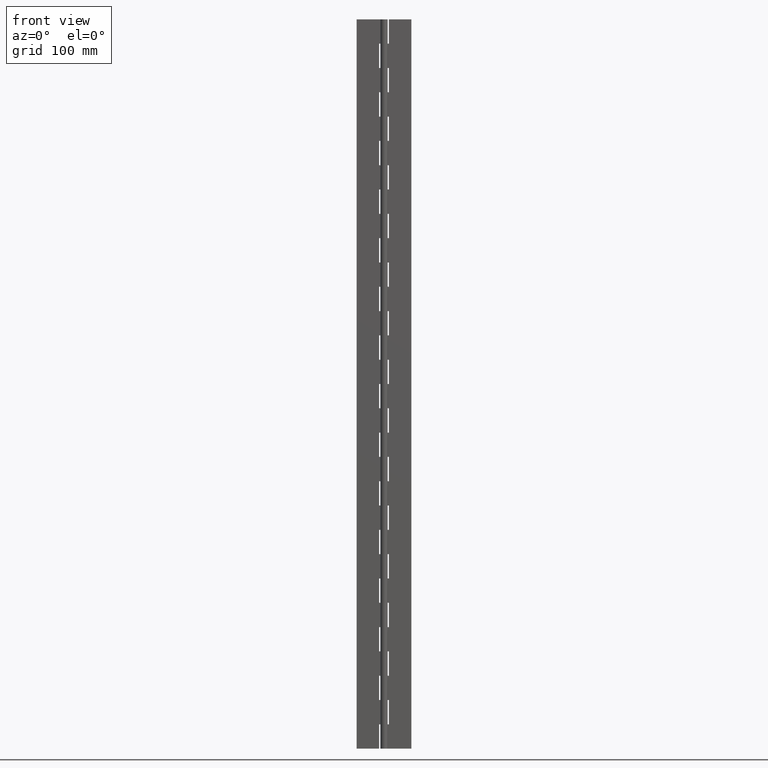
[diagram: clean part render]
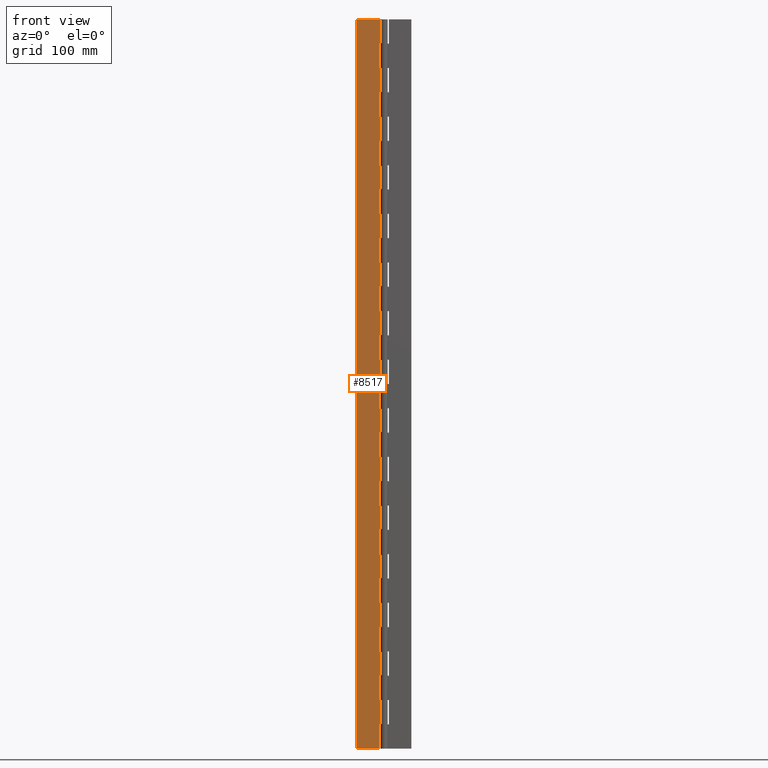
[diagram: same view with one face highlighted and labeled with its STEP entity id]
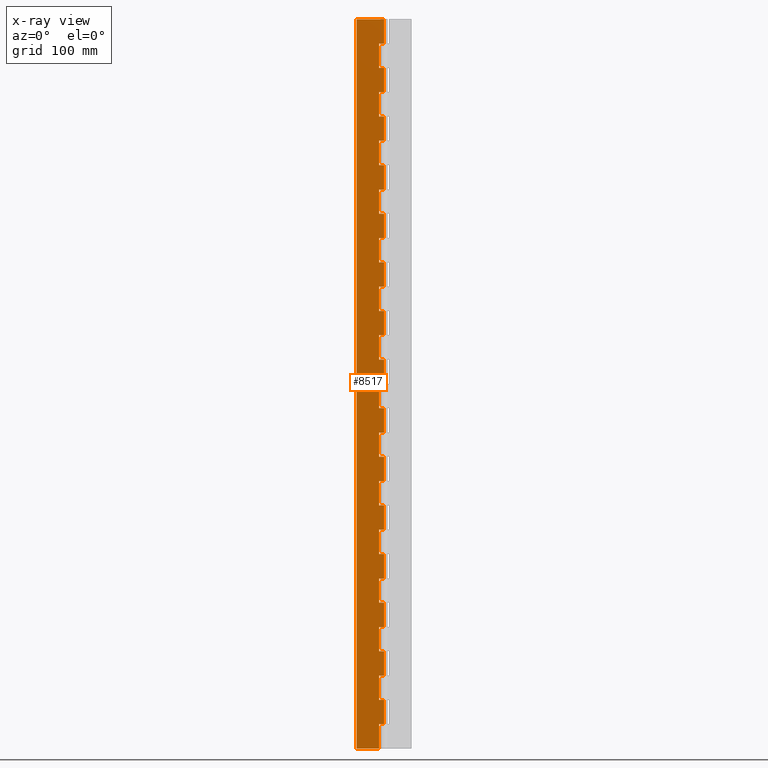
[diagram: x-ray of the same camera — body ghosted, the highlighted face saturated]
A machine part, front view. The second image highlights one B-rep face of the part: STEP entity #8517.
The next image is the same camera in x-ray: the body ghosted, the highlighted face saturated — about 0% of this face is hidden behind the body in this view.
In plain terms, the highlighted face is a freeform B-spline surface patch.
Its self-contained STEP definition (entity closure, byte-faithful):
#4467=CARTESIAN_POINT('',(-4.0,1.499999999999834,560.0));
#4468=VERTEX_POINT('',#4467);
#4469=CARTESIAN_POINT('',(0.0,1.500000000000000,560.0));
#4470=VERTEX_POINT('',#4469);
#4471=CARTESIAN_POINT('',(-4.0,1.499999999999834,560.0));
#4472=CARTESIAN_POINT('',(0.0,1.500000000000000,560.0));
#4473=QUASI_UNIFORM_CURVE('',1,(#4471,#4472),.UNSPECIFIED.,.F.,.U.);
#4474=EDGE_CURVE('',#4468,#4470,#4473,.T.);
#4545=CARTESIAN_POINT('',(0.0,1.500000000000000,580.0));
#4546=VERTEX_POINT('',#4545);
#4547=CARTESIAN_POINT('',(-4.0,1.499999999999834,580.0));
#4548=VERTEX_POINT('',#4547);
#4549=CARTESIAN_POINT('',(0.0,1.500000000000000,580.0));
#4550=CARTESIAN_POINT('',(-4.0,1.499999999999834,580.0));
#4551=QUASI_UNIFORM_CURVE('',1,(#4549,#4550),.UNSPECIFIED.,.F.,.U.);
#4552=EDGE_CURVE('',#4546,#4548,#4551,.T.);
#4623=CARTESIAN_POINT('',(-4.0,1.499999999999834,580.0));
#4624=CARTESIAN_POINT('',(-4.0,1.499999999999834,560.0));
#4625=QUASI_UNIFORM_CURVE('',1,(#4623,#4624),.UNSPECIFIED.,.F.,.U.);
#4626=EDGE_CURVE('',#4548,#4468,#4625,.T.);
#4643=CARTESIAN_POINT('',(-4.0,1.499999999999834,520.0));
#4644=VERTEX_POINT('',#4643);
#4645=CARTESIAN_POINT('',(0.0,1.500000000000000,520.0));
#4646=VERTEX_POINT('',#4645);
#4647=CARTESIAN_POINT('',(-4.0,1.499999999999834,520.0));
#4648=CARTESIAN_POINT('',(0.0,1.500000000000000,520.0));
#4649=QUASI_UNIFORM_CURVE('',1,(#4647,#4648),.UNSPECIFIED.,.F.,.U.);
#4650=EDGE_CURVE('',#4644,#4646,#4649,.T.);
#4721=CARTESIAN_POINT('',(0.0,1.500000000000000,540.0));
#4722=VERTEX_POINT('',#4721);
#4723=CARTESIAN_POINT('',(-4.0,1.499999999999834,540.0));
#4724=VERTEX_POINT('',#4723);
#4725=CARTESIAN_POINT('',(0.0,1.500000000000000,540.0));
#4726=CARTESIAN_POINT('',(-4.0,1.499999999999834,540.0));
#4727=QUASI_UNIFORM_CURVE('',1,(#4725,#4726),.UNSPECIFIED.,.F.,.U.);
#4728=EDGE_CURVE('',#4722,#4724,#4727,.T.);
#4799=CARTESIAN_POINT('',(-4.0,1.499999999999834,540.0));
#4800=CARTESIAN_POINT('',(-4.0,1.499999999999834,520.0));
#4801=QUASI_UNIFORM_CURVE('',1,(#4799,#4800),.UNSPECIFIED.,.F.,.U.);
#4802=EDGE_CURVE('',#4724,#4644,#4801,.T.);
#4819=CARTESIAN_POINT('',(-4.0,1.499999999999834,480.0));
#4820=VERTEX_POINT('',#4819);
#4821=CARTESIAN_POINT('',(0.0,1.500000000000000,480.0));
#4822=VERTEX_POINT('',#4821);
#4823=CARTESIAN_POINT('',(-4.0,1.499999999999834,480.0));
#4824=CARTESIAN_POINT('',(0.0,1.500000000000000,480.0));
#4825=QUASI_UNIFORM_CURVE('',1,(#4823,#4824),.UNSPECIFIED.,.F.,.U.);
#4826=EDGE_CURVE('',#4820,#4822,#4825,.T.);
#4897=CARTESIAN_POINT('',(0.0,1.500000000000000,500.0));
#4898=VERTEX_POINT('',#4897);
#4899=CARTESIAN_POINT('',(-4.0,1.499999999999834,500.0));
#4900=VERTEX_POINT('',#4899);
#4901=CARTESIAN_POINT('',(0.0,1.500000000000000,500.0));
#4902=CARTESIAN_POINT('',(-4.0,1.499999999999834,500.0));
#4903=QUASI_UNIFORM_CURVE('',1,(#4901,#4902),.UNSPECIFIED.,.F.,.U.);
#4904=EDGE_CURVE('',#4898,#4900,#4903,.T.);
#4975=CARTESIAN_POINT('',(-4.0,1.499999999999834,500.0));
#4976=CARTESIAN_POINT('',(-4.0,1.499999999999834,480.0));
#4977=QUASI_UNIFORM_CURVE('',1,(#4975,#4976),.UNSPECIFIED.,.F.,.U.);
#4978=EDGE_CURVE('',#4900,#4820,#4977,.T.);
#4995=CARTESIAN_POINT('',(-4.0,1.499999999999834,440.0));
#4996=VERTEX_POINT('',#4995);
#4997=CARTESIAN_POINT('',(0.0,1.500000000000000,440.0));
#4998=VERTEX_POINT('',#4997);
#4999=CARTESIAN_POINT('',(-4.0,1.499999999999834,440.0));
#5000=CARTESIAN_POINT('',(0.0,1.500000000000000,440.0));
#5001=QUASI_UNIFORM_CURVE('',1,(#4999,#5000),.UNSPECIFIED.,.F.,.U.);
#5002=EDGE_CURVE('',#4996,#4998,#5001,.T.);
#5073=CARTESIAN_POINT('',(0.0,1.500000000000000,460.0));
#5074=VERTEX_POINT('',#5073);
#5075=CARTESIAN_POINT('',(-4.0,1.499999999999834,460.0));
#5076=VERTEX_POINT('',#5075);
#5077=CARTESIAN_POINT('',(0.0,1.500000000000000,460.0));
#5078=CARTESIAN_POINT('',(-4.0,1.499999999999834,460.0));
#5079=QUASI_UNIFORM_CURVE('',1,(#5077,#5078),.UNSPECIFIED.,.F.,.U.);
#5080=EDGE_CURVE('',#5074,#5076,#5079,.T.);
#5151=CARTESIAN_POINT('',(-4.0,1.499999999999834,460.0));
#5152=CARTESIAN_POINT('',(-4.0,1.499999999999834,440.0));
#5153=QUASI_UNIFORM_CURVE('',1,(#5151,#5152),.UNSPECIFIED.,.F.,.U.);
#5154=EDGE_CURVE('',#5076,#4996,#5153,.T.);
#5171=CARTESIAN_POINT('',(-4.0,1.499999999999834,400.0));
#5172=VERTEX_POINT('',#5171);
#5173=CARTESIAN_POINT('',(0.0,1.500000000000000,400.0));
#5174=VERTEX_POINT('',#5173);
#5175=CARTESIAN_POINT('',(-4.0,1.499999999999834,400.0));
#5176=CARTESIAN_POINT('',(0.0,1.500000000000000,400.0));
#5177=QUASI_UNIFORM_CURVE('',1,(#5175,#5176),.UNSPECIFIED.,.F.,.U.);
#5178=EDGE_CURVE('',#5172,#5174,#5177,.T.);
#5249=CARTESIAN_POINT('',(0.0,1.500000000000000,420.0));
#5250=VERTEX_POINT('',#5249);
#5251=CARTESIAN_POINT('',(-4.0,1.499999999999834,420.0));
#5252=VERTEX_POINT('',#5251);
#5253=CARTESIAN_POINT('',(0.0,1.500000000000000,420.0));
#5254=CARTESIAN_POINT('',(-4.0,1.499999999999834,420.0));
#5255=QUASI_UNIFORM_CURVE('',1,(#5253,#5254),.UNSPECIFIED.,.F.,.U.);
#5256=EDGE_CURVE('',#5250,#5252,#5255,.T.);
#5327=CARTESIAN_POINT('',(-4.0,1.499999999999834,420.0));
#5328=CARTESIAN_POINT('',(-4.0,1.499999999999834,400.0));
#5329=QUASI_UNIFORM_CURVE('',1,(#5327,#5328),.UNSPECIFIED.,.F.,.U.);
#5330=EDGE_CURVE('',#5252,#5172,#5329,.T.);
#5347=CARTESIAN_POINT('',(-4.0,1.499999999999834,360.0));
#5348=VERTEX_POINT('',#5347);
#5349=CARTESIAN_POINT('',(0.0,1.500000000000000,360.0));
#5350=VERTEX_POINT('',#5349);
#5351=CARTESIAN_POINT('',(-4.0,1.499999999999834,360.0));
#5352=CARTESIAN_POINT('',(0.0,1.500000000000000,360.0));
#5353=QUASI_UNIFORM_CURVE('',1,(#5351,#5352),.UNSPECIFIED.,.F.,.U.);
#5354=EDGE_CURVE('',#5348,#5350,#5353,.T.);
#5425=CARTESIAN_POINT('',(0.0,1.500000000000000,380.0));
#5426=VERTEX_POINT('',#5425);
#5427=CARTESIAN_POINT('',(-4.0,1.499999999999834,380.0));
#5428=VERTEX_POINT('',#5427);
#5429=CARTESIAN_POINT('',(0.0,1.500000000000000,380.0));
#5430=CARTESIAN_POINT('',(-4.0,1.499999999999834,380.0));
#5431=QUASI_UNIFORM_CURVE('',1,(#5429,#5430),.UNSPECIFIED.,.F.,.U.);
#5432=EDGE_CURVE('',#5426,#5428,#5431,.T.);
#5503=CARTESIAN_POINT('',(-4.0,1.499999999999834,380.0));
#5504=CARTESIAN_POINT('',(-4.0,1.499999999999834,360.0));
#5505=QUASI_UNIFORM_CURVE('',1,(#5503,#5504),.UNSPECIFIED.,.F.,.U.);
#5506=EDGE_CURVE('',#5428,#5348,#5505,.T.);
#5523=CARTESIAN_POINT('',(-4.0,1.499999999999834,320.0));
#5524=VERTEX_POINT('',#5523);
#5525=CARTESIAN_POINT('',(0.0,1.500000000000000,320.0));
#5526=VERTEX_POINT('',#5525);
#5527=CARTESIAN_POINT('',(-4.0,1.499999999999834,320.0));
#5528=CARTESIAN_POINT('',(0.0,1.500000000000000,320.0));
#5529=QUASI_UNIFORM_CURVE('',1,(#5527,#5528),.UNSPECIFIED.,.F.,.U.);
#5530=EDGE_CURVE('',#5524,#5526,#5529,.T.);
#5601=CARTESIAN_POINT('',(0.0,1.500000000000000,340.0));
#5602=VERTEX_POINT('',#5601);
#5603=CARTESIAN_POINT('',(-4.0,1.499999999999834,340.0));
#5604=VERTEX_POINT('',#5603);
#5605=CARTESIAN_POINT('',(0.0,1.500000000000000,340.0));
#5606=CARTESIAN_POINT('',(-4.0,1.499999999999834,340.0));
#5607=QUASI_UNIFORM_CURVE('',1,(#5605,#5606),.UNSPECIFIED.,.F.,.U.);
#5608=EDGE_CURVE('',#5602,#5604,#5607,.T.);
#5679=CARTESIAN_POINT('',(-4.0,1.499999999999834,340.0));
#5680=CARTESIAN_POINT('',(-4.0,1.499999999999834,320.0));
#5681=QUASI_UNIFORM_CURVE('',1,(#5679,#5680),.UNSPECIFIED.,.F.,.U.);
#5682=EDGE_CURVE('',#5604,#5524,#5681,.T.);
#5699=CARTESIAN_POINT('',(-4.0,1.499999999999834,280.0));
#5700=VERTEX_POINT('',#5699);
#5701=CARTESIAN_POINT('',(0.0,1.500000000000000,280.0));
#5702=VERTEX_POINT('',#5701);
#5703=CARTESIAN_POINT('',(-4.0,1.499999999999834,280.0));
#5704=CARTESIAN_POINT('',(0.0,1.500000000000000,280.0));
#5705=QUASI_UNIFORM_CURVE('',1,(#5703,#5704),.UNSPECIFIED.,.F.,.U.);
#5706=EDGE_CURVE('',#5700,#5702,#5705,.T.);
#5777=CARTESIAN_POINT('',(0.0,1.500000000000000,300.0));
#5778=VERTEX_POINT('',#5777);
#5779=CARTESIAN_POINT('',(-4.0,1.499999999999834,300.0));
#5780=VERTEX_POINT('',#5779);
#5781=CARTESIAN_POINT('',(0.0,1.500000000000000,300.0));
#5782=CARTESIAN_POINT('',(-4.0,1.499999999999834,300.0));
#5783=QUASI_UNIFORM_CURVE('',1,(#5781,#5782),.UNSPECIFIED.,.F.,.U.);
#5784=EDGE_CURVE('',#5778,#5780,#5783,.T.);
#5855=CARTESIAN_POINT('',(-4.0,1.499999999999834,300.0));
#5856=CARTESIAN_POINT('',(-4.0,1.499999999999834,280.0));
#5857=QUASI_UNIFORM_CURVE('',1,(#5855,#5856),.UNSPECIFIED.,.F.,.U.);
#5858=EDGE_CURVE('',#5780,#5700,#5857,.T.);
#5875=CARTESIAN_POINT('',(-4.0,1.499999999999834,240.0));
#5876=VERTEX_POINT('',#5875);
#5877=CARTESIAN_POINT('',(0.0,1.500000000000000,240.0));
#5878=VERTEX_POINT('',#5877);
#5879=CARTESIAN_POINT('',(-4.0,1.499999999999834,240.0));
#5880=CARTESIAN_POINT('',(0.0,1.500000000000000,240.0));
#5881=QUASI_UNIFORM_CURVE('',1,(#5879,#5880),.UNSPECIFIED.,.F.,.U.);
#5882=EDGE_CURVE('',#5876,#5878,#5881,.T.);
#5953=CARTESIAN_POINT('',(0.0,1.500000000000000,260.0));
#5954=VERTEX_POINT('',#5953);
#5955=CARTESIAN_POINT('',(-4.0,1.499999999999834,260.0));
#5956=VERTEX_POINT('',#5955);
#5957=CARTESIAN_POINT('',(0.0,1.500000000000000,260.0));
#5958=CARTESIAN_POINT('',(-4.0,1.499999999999834,260.0));
#5959=QUASI_UNIFORM_CURVE('',1,(#5957,#5958),.UNSPECIFIED.,.F.,.U.);
#5960=EDGE_CURVE('',#5954,#5956,#5959,.T.);
#6031=CARTESIAN_POINT('',(-4.0,1.499999999999834,260.0));
#6032=CARTESIAN_POINT('',(-4.0,1.499999999999834,240.0));
#6033=QUASI_UNIFORM_CURVE('',1,(#6031,#6032),.UNSPECIFIED.,.F.,.U.);
#6034=EDGE_CURVE('',#5956,#5876,#6033,.T.);
#6051=CARTESIAN_POINT('',(-4.0,1.499999999999834,200.0));
#6052=VERTEX_POINT('',#6051);
#6053=CARTESIAN_POINT('',(0.0,1.500000000000000,200.0));
#6054=VERTEX_POINT('',#6053);
#6055=CARTESIAN_POINT('',(-4.0,1.499999999999834,200.0));
#6056=CARTESIAN_POINT('',(0.0,1.500000000000000,200.0));
#6057=QUASI_UNIFORM_CURVE('',1,(#6055,#6056),.UNSPECIFIED.,.F.,.U.);
#6058=EDGE_CURVE('',#6052,#6054,#6057,.T.);
#6129=CARTESIAN_POINT('',(0.0,1.500000000000000,220.0));
#6130=VERTEX_POINT('',#6129);
#6131=CARTESIAN_POINT('',(-4.0,1.499999999999834,220.0));
#6132=VERTEX_POINT('',#6131);
#6133=CARTESIAN_POINT('',(0.0,1.500000000000000,220.0));
#6134=CARTESIAN_POINT('',(-4.0,1.499999999999834,220.0));
#6135=QUASI_UNIFORM_CURVE('',1,(#6133,#6134),.UNSPECIFIED.,.F.,.U.);
#6136=EDGE_CURVE('',#6130,#6132,#6135,.T.);
#6207=CARTESIAN_POINT('',(-4.0,1.499999999999834,220.0));
#6208=CARTESIAN_POINT('',(-4.0,1.499999999999834,200.0));
#6209=QUASI_UNIFORM_CURVE('',1,(#6207,#6208),.UNSPECIFIED.,.F.,.U.);
#6210=EDGE_CURVE('',#6132,#6052,#6209,.T.);
#6227=CARTESIAN_POINT('',(-4.0,1.499999999999834,160.0));
#6228=VERTEX_POINT('',#6227);
#6229=CARTESIAN_POINT('',(0.0,1.500000000000000,160.0));
#6230=VERTEX_POINT('',#6229);
#6231=CARTESIAN_POINT('',(-4.0,1.499999999999834,160.0));
#6232=CARTESIAN_POINT('',(0.0,1.500000000000000,160.0));
#6233=QUASI_UNIFORM_CURVE('',1,(#6231,#6232),.UNSPECIFIED.,.F.,.U.);
#6234=EDGE_CURVE('',#6228,#6230,#6233,.T.);
#6305=CARTESIAN_POINT('',(0.0,1.500000000000000,180.0));
#6306=VERTEX_POINT('',#6305);
#6307=CARTESIAN_POINT('',(-4.0,1.499999999999834,180.0));
#6308=VERTEX_POINT('',#6307);
#6309=CARTESIAN_POINT('',(0.0,1.500000000000000,180.0));
#6310=CARTESIAN_POINT('',(-4.0,1.499999999999834,180.0));
#6311=QUASI_UNIFORM_CURVE('',1,(#6309,#6310),.UNSPECIFIED.,.F.,.U.);
#6312=EDGE_CURVE('',#6306,#6308,#6311,.T.);
#6383=CARTESIAN_POINT('',(-4.0,1.499999999999834,180.0));
#6384=CARTESIAN_POINT('',(-4.0,1.499999999999834,160.0));
#6385=QUASI_UNIFORM_CURVE('',1,(#6383,#6384),.UNSPECIFIED.,.F.,.U.);
#6386=EDGE_CURVE('',#6308,#6228,#6385,.T.);
#6403=CARTESIAN_POINT('',(-4.0,1.499999999999834,120.0));
#6404=VERTEX_POINT('',#6403);
#6405=CARTESIAN_POINT('',(0.0,1.500000000000000,120.0));
#6406=VERTEX_POINT('',#6405);
#6407=CARTESIAN_POINT('',(-4.0,1.499999999999834,120.0));
#6408=CARTESIAN_POINT('',(0.0,1.500000000000000,120.0));
#6409=QUASI_UNIFORM_CURVE('',1,(#6407,#6408),.UNSPECIFIED.,.F.,.U.);
#6410=EDGE_CURVE('',#6404,#6406,#6409,.T.);
#6481=CARTESIAN_POINT('',(0.0,1.500000000000000,140.0));
#6482=VERTEX_POINT('',#6481);
#6483=CARTESIAN_POINT('',(-4.0,1.499999999999834,140.0));
#6484=VERTEX_POINT('',#6483);
#6485=CARTESIAN_POINT('',(0.0,1.500000000000000,140.0));
#6486=CARTESIAN_POINT('',(-4.0,1.499999999999834,140.0));
#6487=QUASI_UNIFORM_CURVE('',1,(#6485,#6486),.UNSPECIFIED.,.F.,.U.);
#6488=EDGE_CURVE('',#6482,#6484,#6487,.T.);
#6559=CARTESIAN_POINT('',(-4.0,1.499999999999834,140.0));
#6560=CARTESIAN_POINT('',(-4.0,1.499999999999834,120.0));
#6561=QUASI_UNIFORM_CURVE('',1,(#6559,#6560),.UNSPECIFIED.,.F.,.U.);
#6562=EDGE_CURVE('',#6484,#6404,#6561,.T.);
#6579=CARTESIAN_POINT('',(-4.0,1.499999999999834,80.0));
#6580=VERTEX_POINT('',#6579);
#6581=CARTESIAN_POINT('',(0.0,1.500000000000000,80.0));
#6582=VERTEX_POINT('',#6581);
#6583=CARTESIAN_POINT('',(-4.0,1.499999999999834,80.0));
#6584=CARTESIAN_POINT('',(0.0,1.500000000000000,80.0));
#6585=QUASI_UNIFORM_CURVE('',1,(#6583,#6584),.UNSPECIFIED.,.F.,.U.);
#6586=EDGE_CURVE('',#6580,#6582,#6585,.T.);
#6657=CARTESIAN_POINT('',(0.0,1.500000000000000,100.0));
#6658=VERTEX_POINT('',#6657);
#6659=CARTESIAN_POINT('',(-4.0,1.499999999999834,100.0));
#6660=VERTEX_POINT('',#6659);
#6661=CARTESIAN_POINT('',(0.0,1.500000000000000,100.0));
#6662=CARTESIAN_POINT('',(-4.0,1.499999999999834,100.0));
#6663=QUASI_UNIFORM_CURVE('',1,(#6661,#6662),.UNSPECIFIED.,.F.,.U.);
#6664=EDGE_CURVE('',#6658,#6660,#6663,.T.);
#6735=CARTESIAN_POINT('',(-4.0,1.499999999999834,100.0));
#6736=CARTESIAN_POINT('',(-4.0,1.499999999999834,80.0));
#6737=QUASI_UNIFORM_CURVE('',1,(#6735,#6736),.UNSPECIFIED.,.F.,.U.);
#6738=EDGE_CURVE('',#6660,#6580,#6737,.T.);
#6755=CARTESIAN_POINT('',(-4.0,1.499999999999834,40.0));
#6756=VERTEX_POINT('',#6755);
#6757=CARTESIAN_POINT('',(0.0,1.500000000000000,40.0));
#6758=VERTEX_POINT('',#6757);
#6759=CARTESIAN_POINT('',(-4.0,1.499999999999834,40.0));
#6760=CARTESIAN_POINT('',(0.0,1.500000000000000,40.0));
#6761=QUASI_UNIFORM_CURVE('',1,(#6759,#6760),.UNSPECIFIED.,.F.,.U.);
#6762=EDGE_CURVE('',#6756,#6758,#6761,.T.);
#6833=CARTESIAN_POINT('',(0.0,1.500000000000000,60.0));
#6834=VERTEX_POINT('',#6833);
#6835=CARTESIAN_POINT('',(-4.0,1.499999999999834,60.0));
#6836=VERTEX_POINT('',#6835);
#6837=CARTESIAN_POINT('',(0.0,1.500000000000000,60.0));
#6838=CARTESIAN_POINT('',(-4.0,1.499999999999834,60.0));
#6839=QUASI_UNIFORM_CURVE('',1,(#6837,#6838),.UNSPECIFIED.,.F.,.U.);
#6840=EDGE_CURVE('',#6834,#6836,#6839,.T.);
#6911=CARTESIAN_POINT('',(-4.0,1.499999999999834,60.0));
#6912=CARTESIAN_POINT('',(-4.0,1.499999999999834,40.0));
#6913=QUASI_UNIFORM_CURVE('',1,(#6911,#6912),.UNSPECIFIED.,.F.,.U.);
#6914=EDGE_CURVE('',#6836,#6756,#6913,.T.);
#6931=CARTESIAN_POINT('',(-4.0,1.499999999999834,20.0));
#6932=VERTEX_POINT('',#6931);
#6933=CARTESIAN_POINT('',(-4.0,1.499999999999886,0.0));
#6934=VERTEX_POINT('',#6933);
#6935=CARTESIAN_POINT('',(-4.0,1.499999999999834,20.0));
#6936=CARTESIAN_POINT('',(-4.0,1.499999999999886,0.0));
#6937=QUASI_UNIFORM_CURVE('',1,(#6935,#6936),.UNSPECIFIED.,.F.,.U.);
#6938=EDGE_CURVE('',#6932,#6934,#6937,.T.);
#6967=CARTESIAN_POINT('',(0.0,1.500000000000000,20.0));
#6968=VERTEX_POINT('',#6967);
#6969=CARTESIAN_POINT('',(0.0,1.500000000000000,20.0));
#6970=CARTESIAN_POINT('',(-4.0,1.499999999999834,20.0));
#6971=QUASI_UNIFORM_CURVE('',1,(#6969,#6970),.UNSPECIFIED.,.F.,.U.);
#6972=EDGE_CURVE('',#6968,#6932,#6971,.T.);
#7046=CARTESIAN_POINT('',(-22.500000000000000,1.499999999999886,600.0));
#7047=VERTEX_POINT('',#7046);
#7053=CARTESIAN_POINT('',(0.0,1.499999999999886,600.0));
#7054=VERTEX_POINT('',#7053);
#7055=CARTESIAN_POINT('',(-22.500000000000000,1.499999999999886,600.0));
#7056=CARTESIAN_POINT('',(0.0,1.499999999999886,600.0));
#7057=QUASI_UNIFORM_CURVE('',1,(#7055,#7056),.UNSPECIFIED.,.F.,.U.);
#7058=EDGE_CURVE('',#7047,#7054,#7057,.T.);
#7117=CARTESIAN_POINT('',(-22.500000000000000,1.499999999999886,0.0));
#7118=VERTEX_POINT('',#7117);
#7124=CARTESIAN_POINT('',(-22.500000000000000,1.499999999999886,600.0));
#7125=CARTESIAN_POINT('',(-22.500000000000000,1.499999999999886,0.0));
#7126=QUASI_UNIFORM_CURVE('',1,(#7124,#7125),.UNSPECIFIED.,.F.,.U.);
#7127=EDGE_CURVE('',#7047,#7118,#7126,.T.);
#7144=CARTESIAN_POINT('',(-22.500000000000000,1.499999999999886,0.0));
#7145=CARTESIAN_POINT('',(-4.0,1.499999999999886,0.0));
#7146=QUASI_UNIFORM_CURVE('',1,(#7144,#7145),.UNSPECIFIED.,.F.,.U.);
#7147=EDGE_CURVE('',#7118,#6934,#7146,.T.);
#7235=CARTESIAN_POINT('',(0.0,1.500000000000000,40.0));
#7236=CARTESIAN_POINT('',(0.0,1.500000000000000,20.0));
#7237=QUASI_UNIFORM_CURVE('',1,(#7235,#7236),.UNSPECIFIED.,.F.,.U.);
#7238=EDGE_CURVE('',#6758,#6968,#7237,.T.);
#7321=CARTESIAN_POINT('',(0.0,1.500000000000000,80.0));
#7322=CARTESIAN_POINT('',(0.0,1.500000000000000,60.0));
#7323=QUASI_UNIFORM_CURVE('',1,(#7321,#7322),.UNSPECIFIED.,.F.,.U.);
#7324=EDGE_CURVE('',#6582,#6834,#7323,.T.);
#7407=CARTESIAN_POINT('',(0.0,1.500000000000000,120.0));
#7408=CARTESIAN_POINT('',(0.0,1.500000000000000,100.0));
#7409=QUASI_UNIFORM_CURVE('',1,(#7407,#7408),.UNSPECIFIED.,.F.,.U.);
#7410=EDGE_CURVE('',#6406,#6658,#7409,.T.);
#7493=CARTESIAN_POINT('',(0.0,1.500000000000000,160.0));
#7494=CARTESIAN_POINT('',(0.0,1.500000000000000,140.0));
#7495=QUASI_UNIFORM_CURVE('',1,(#7493,#7494),.UNSPECIFIED.,.F.,.U.);
#7496=EDGE_CURVE('',#6230,#6482,#7495,.T.);
#7579=CARTESIAN_POINT('',(0.0,1.500000000000000,200.0));
#7580=CARTESIAN_POINT('',(0.0,1.500000000000000,180.0));
#7581=QUASI_UNIFORM_CURVE('',1,(#7579,#7580),.UNSPECIFIED.,.F.,.U.);
#7582=EDGE_CURVE('',#6054,#6306,#7581,.T.);
#7665=CARTESIAN_POINT('',(0.0,1.500000000000000,240.0));
#7666=CARTESIAN_POINT('',(0.0,1.500000000000000,220.0));
#7667=QUASI_UNIFORM_CURVE('',1,(#7665,#7666),.UNSPECIFIED.,.F.,.U.);
#7668=EDGE_CURVE('',#5878,#6130,#7667,.T.);
#7751=CARTESIAN_POINT('',(0.0,1.500000000000000,280.0));
#7752=CARTESIAN_POINT('',(0.0,1.500000000000000,260.0));
#7753=QUASI_UNIFORM_CURVE('',1,(#7751,#7752),.UNSPECIFIED.,.F.,.U.);
#7754=EDGE_CURVE('',#5702,#5954,#7753,.T.);
#7837=CARTESIAN_POINT('',(0.0,1.500000000000000,320.0));
#7838=CARTESIAN_POINT('',(0.0,1.500000000000000,300.0));
#7839=QUASI_UNIFORM_CURVE('',1,(#7837,#7838),.UNSPECIFIED.,.F.,.U.);
#7840=EDGE_CURVE('',#5526,#5778,#7839,.T.);
#7923=CARTESIAN_POINT('',(0.0,1.500000000000000,360.0));
#7924=CARTESIAN_POINT('',(0.0,1.500000000000000,340.0));
#7925=QUASI_UNIFORM_CURVE('',1,(#7923,#7924),.UNSPECIFIED.,.F.,.U.);
#7926=EDGE_CURVE('',#5350,#5602,#7925,.T.);
#8009=CARTESIAN_POINT('',(0.0,1.500000000000000,400.0));
#8010=CARTESIAN_POINT('',(0.0,1.500000000000000,380.0));
#8011=QUASI_UNIFORM_CURVE('',1,(#8009,#8010),.UNSPECIFIED.,.F.,.U.);
#8012=EDGE_CURVE('',#5174,#5426,#8011,.T.);
#8095=CARTESIAN_POINT('',(0.0,1.500000000000000,440.0));
#8096=CARTESIAN_POINT('',(0.0,1.500000000000000,420.0));
#8097=QUASI_UNIFORM_CURVE('',1,(#8095,#8096),.UNSPECIFIED.,.F.,.U.);
#8098=EDGE_CURVE('',#4998,#5250,#8097,.T.);
#8181=CARTESIAN_POINT('',(0.0,1.500000000000000,480.0));
#8182=CARTESIAN_POINT('',(0.0,1.500000000000000,460.0));
#8183=QUASI_UNIFORM_CURVE('',1,(#8181,#8182),.UNSPECIFIED.,.F.,.U.);
#8184=EDGE_CURVE('',#4822,#5074,#8183,.T.);
#8267=CARTESIAN_POINT('',(0.0,1.500000000000000,520.0));
#8268=CARTESIAN_POINT('',(0.0,1.500000000000000,500.0));
#8269=QUASI_UNIFORM_CURVE('',1,(#8267,#8268),.UNSPECIFIED.,.F.,.U.);
#8270=EDGE_CURVE('',#4646,#4898,#8269,.T.);
#8406=CARTESIAN_POINT('',(0.0,1.500000000000000,560.0));
#8407=CARTESIAN_POINT('',(0.0,1.500000000000000,540.0));
#8408=QUASI_UNIFORM_CURVE('',1,(#8406,#8407),.UNSPECIFIED.,.F.,.U.);
#8409=EDGE_CURVE('',#4470,#4722,#8408,.T.);
#8437=CARTESIAN_POINT('',(0.0,1.499999999999886,600.0));
#8438=CARTESIAN_POINT('',(0.0,1.500000000000000,580.0));
#8439=QUASI_UNIFORM_CURVE('',1,(#8437,#8438),.UNSPECIFIED.,.F.,.U.);
#8440=EDGE_CURVE('',#7054,#4546,#8439,.T.);
#8448=CARTESIAN_POINT('',(-23.623874956390630,1.499999999999886,-29.969998837083590));
#8449=CARTESIAN_POINT('',(-23.623874956390630,1.499999999999886,629.970014930337700));
#8450=CARTESIAN_POINT('',(1.123875559887663,1.499999999999886,-29.969998837083590));
#8451=CARTESIAN_POINT('',(1.123875559887663,1.499999999999886,629.970014930337700));
#8452=B_SPLINE_SURFACE_WITH_KNOTS('',1,1,((#8448,#8450),(#8449,#8451)),.UNSPECIFIED.,.F.,.F.,.U.,(2,2),(2,2),(0.0,659.940013767421310),(0.0,24.747750516278298),.UNSPECIFIED.);
#8453=ORIENTED_EDGE('',*,*,#4552,.F.);
#8454=ORIENTED_EDGE('',*,*,#8440,.F.);
#8455=ORIENTED_EDGE('',*,*,#7058,.F.);
#8456=ORIENTED_EDGE('',*,*,#7127,.T.);
#8457=ORIENTED_EDGE('',*,*,#7147,.T.);
#8458=ORIENTED_EDGE('',*,*,#6938,.F.);
#8459=ORIENTED_EDGE('',*,*,#6972,.F.);
#8460=ORIENTED_EDGE('',*,*,#7238,.F.);
#8461=ORIENTED_EDGE('',*,*,#6762,.F.);
#8462=ORIENTED_EDGE('',*,*,#6914,.F.);
#8463=ORIENTED_EDGE('',*,*,#6840,.F.);
#8464=ORIENTED_EDGE('',*,*,#7324,.F.);
#8465=ORIENTED_EDGE('',*,*,#6586,.F.);
#8466=ORIENTED_EDGE('',*,*,#6738,.F.);
#8467=ORIENTED_EDGE('',*,*,#6664,.F.);
#8468=ORIENTED_EDGE('',*,*,#7410,.F.);
#8469=ORIENTED_EDGE('',*,*,#6410,.F.);
#8470=ORIENTED_EDGE('',*,*,#6562,.F.);
#8471=ORIENTED_EDGE('',*,*,#6488,.F.);
#8472=ORIENTED_EDGE('',*,*,#7496,.F.);
#8473=ORIENTED_EDGE('',*,*,#6234,.F.);
#8474=ORIENTED_EDGE('',*,*,#6386,.F.);
#8475=ORIENTED_EDGE('',*,*,#6312,.F.);
#8476=ORIENTED_EDGE('',*,*,#7582,.F.);
#8477=ORIENTED_EDGE('',*,*,#6058,.F.);
#8478=ORIENTED_EDGE('',*,*,#6210,.F.);
#8479=ORIENTED_EDGE('',*,*,#6136,.F.);
#8480=ORIENTED_EDGE('',*,*,#7668,.F.);
#8481=ORIENTED_EDGE('',*,*,#5882,.F.);
#8482=ORIENTED_EDGE('',*,*,#6034,.F.);
#8483=ORIENTED_EDGE('',*,*,#5960,.F.);
#8484=ORIENTED_EDGE('',*,*,#7754,.F.);
#8485=ORIENTED_EDGE('',*,*,#5706,.F.);
#8486=ORIENTED_EDGE('',*,*,#5858,.F.);
#8487=ORIENTED_EDGE('',*,*,#5784,.F.);
#8488=ORIENTED_EDGE('',*,*,#7840,.F.);
#8489=ORIENTED_EDGE('',*,*,#5530,.F.);
#8490=ORIENTED_EDGE('',*,*,#5682,.F.);
#8491=ORIENTED_EDGE('',*,*,#5608,.F.);
#8492=ORIENTED_EDGE('',*,*,#7926,.F.);
#8493=ORIENTED_EDGE('',*,*,#5354,.F.);
#8494=ORIENTED_EDGE('',*,*,#5506,.F.);
#8495=ORIENTED_EDGE('',*,*,#5432,.F.);
#8496=ORIENTED_EDGE('',*,*,#8012,.F.);
#8497=ORIENTED_EDGE('',*,*,#5178,.F.);
#8498=ORIENTED_EDGE('',*,*,#5330,.F.);
#8499=ORIENTED_EDGE('',*,*,#5256,.F.);
#8500=ORIENTED_EDGE('',*,*,#8098,.F.);
#8501=ORIENTED_EDGE('',*,*,#5002,.F.);
#8502=ORIENTED_EDGE('',*,*,#5154,.F.);
#8503=ORIENTED_EDGE('',*,*,#5080,.F.);
#8504=ORIENTED_EDGE('',*,*,#8184,.F.);
#8505=ORIENTED_EDGE('',*,*,#4826,.F.);
#8506=ORIENTED_EDGE('',*,*,#4978,.F.);
#8507=ORIENTED_EDGE('',*,*,#4904,.F.);
#8508=ORIENTED_EDGE('',*,*,#8270,.F.);
#8509=ORIENTED_EDGE('',*,*,#4650,.F.);
#8510=ORIENTED_EDGE('',*,*,#4802,.F.);
#8511=ORIENTED_EDGE('',*,*,#4728,.F.);
#8512=ORIENTED_EDGE('',*,*,#8409,.F.);
#8513=ORIENTED_EDGE('',*,*,#4474,.F.);
#8514=ORIENTED_EDGE('',*,*,#4626,.F.);
#8515=EDGE_LOOP('',(#8453,#8454,#8455,#8456,#8457,#8458,#8459,#8460,#8461,#8462,#8463,#8464,#8465,#8466,#8467,#8468,#8469,#8470,#8471,#8472,#8473,#8474,#8475,#8476,#8477,#8478,#8479,#8480,#8481,#8482,#8483,#8484,#8485,#8486,#8487,#8488,#8489,#8490,#8491,#8492,#8493,#8494,#8495,#8496,#8497,#8498,#8499,#8500,#8501,#8502,#8503,#8504,#8505,#8506,#8507,#8508,#8509,#8510,#8511,#8512,#8513,#8514));
#8516=FACE_OUTER_BOUND('',#8515,.T.);
#8517=ADVANCED_FACE('',(#8516),#8452,.F.);